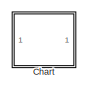
[diagram: root canvas - part 1/2, top center region]
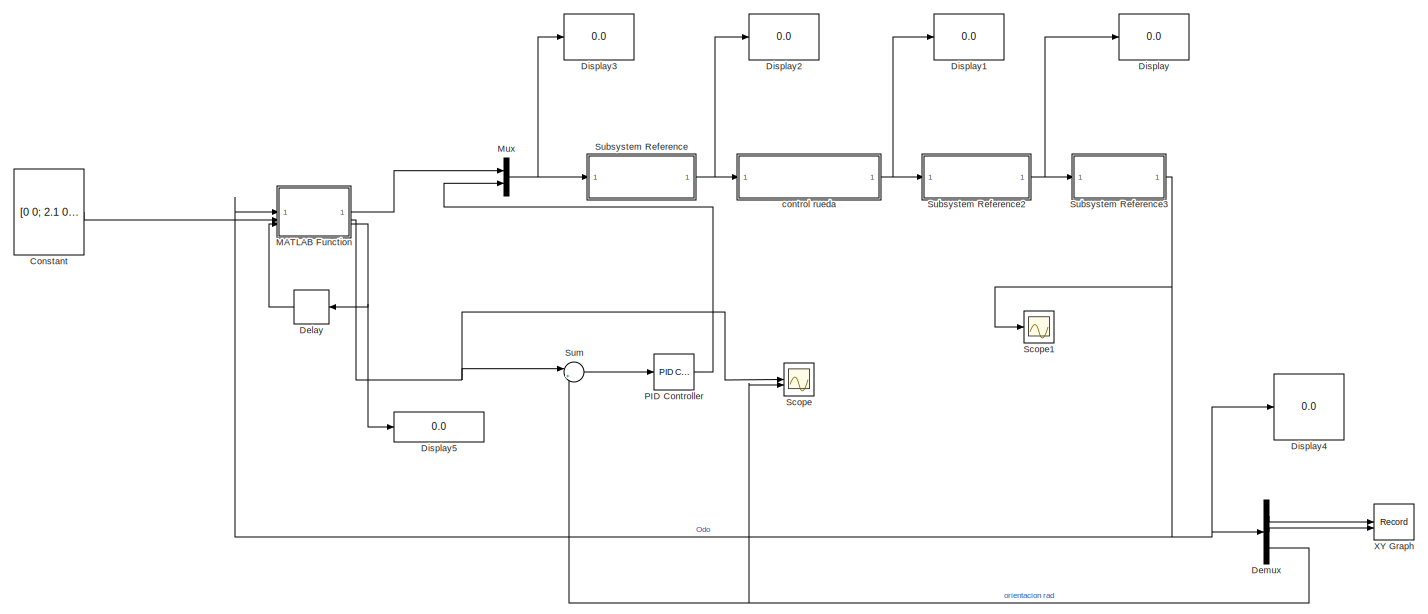
[diagram: root canvas - part 2/2, full width, middle band]
MODEL slx_1a6dbf2c0a22
KIND model
CONFIG AbsTol = auto
CONFIG EnableMultiTasking = on
CONFIG FixedStep = auto
CONFIG MaxStep = auto
CONFIG MinStep = auto
CONFIG RelTol = 1e-3
CONFIG SampleTimeConstraint = Unconstrained
CONFIG SolverName = FixedStepAuto
CONFIG StartTime = 0.0
CONFIG StopTime = 150
WORKSPACE source: mxarray member
WORKSPACE d = 0.19
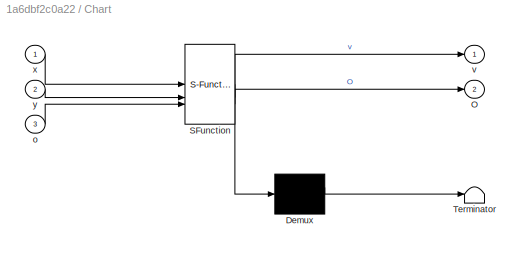
BLOCK [SubSystem] Chart
  Commented = on
  ErrorFcn = Stateflow.Translate.translate
  PermitHierarchicalResolution = ExplicitOnly
  SFBlockType = Chart
  TreatAsAtomicUnit = on
BLOCK [Demux] Chart/ Demux 
  Outputs = 1
BLOCK [S-Function] Chart/ SFunction 
  EnableBusSupport = on
  FunctionName = sf_sfun
  PortCounts = [3 3]
  SFcnIsStateOwnerBlock = off
  SFunctionDeploymentMode = off
  Tag = Stateflow S-Function 3
BLOCK [Terminator] Chart/ Terminator 
BLOCK [Outport] Chart/O
  Port = 2
BLOCK [Inport] Chart/o
  Port = 3
BLOCK [Outport] Chart/v
BLOCK [Inport] Chart/x
BLOCK [Inport] Chart/y
  Port = 2
BLOCK [Constant] Constant
  Value = [0 0; 2.1 0; 2.1 12; 3 12; 3 14; 3 14]
BLOCK [Delay] Delay
  DelayLength = 1
  InputPortMap = u0
BLOCK [Demux] Demux
  Outputs = 3
BLOCK [Display] Display
  Decimation = 1
BLOCK [Display] Display1
  Decimation = 1
BLOCK [Display] Display2
  Decimation = 1
BLOCK [Display] Display3
  Decimation = 1
BLOCK [Display] Display4
  Decimation = 1
BLOCK [Display] Display5
  Decimation = 1
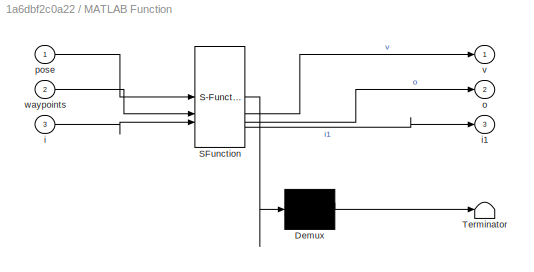
BLOCK [SubSystem] MATLAB Function
  ErrorFcn = Stateflow.Translate.translate
  PermitHierarchicalResolution = ExplicitOnly
  SFBlockType = MATLAB Function
  TreatAsAtomicUnit = on
BLOCK [Demux] MATLAB Function/ Demux 
  Outputs = 1
BLOCK [S-Function] MATLAB Function/ SFunction 
  EnableBusSupport = on
  FunctionName = sf_sfun
  PortCounts = [3 4]
  SFcnIsStateOwnerBlock = off
  SFunctionDeploymentMode = off
  Tag = Stateflow S-Function 2
BLOCK [Terminator] MATLAB Function/ Terminator 
BLOCK [Inport] MATLAB Function/i
  Port = 3
BLOCK [Outport] MATLAB Function/i1
  Port = 3
BLOCK [Outport] MATLAB Function/o
  Port = 2
BLOCK [Inport] MATLAB Function/pose
BLOCK [Outport] MATLAB Function/v
BLOCK [Inport] MATLAB Function/waypoints
  Port = 2
BLOCK [Mux] Mux
  DisplayOption = bar
  Inputs = 2
BLOCK [Reference] PID Controller  REF=slpidlib/PID Controller
  LibrarySourceBlock = simulink/Continuous/PID Controller
  SourceBlock = slpidlib/PID Controller
  SourceType = PID 1dof
BLOCK [Scope] Scope
  Floating = off
  NumInputPorts = 2
  ScopeSpecificationString = Simulink.scopes.TimeScopeBlockCfg('CurrentConfiguration', extmgr.ConfigurationSet(extmgr.Configuration('Core','General UI',true),extmgr.Configuration('Core','Source UI',true),extmgr.Configuration('Sources','WiredSimulink',true),extmgr.Configuration('Visuals','Time Domain',true,'SerializedDisplays',{struct('MinYLimReal','-0.19446','MaxYLimReal','1.74912','YLabelReal','','MinYLimMag','0.00000','MaxY...<+1997ch>
BLOCK [Scope] Scope1
  Floating = off
  NumInputPorts = 1
  ScopeSpecificationString = Simulink.scopes.TimeScopeBlockCfg('CurrentConfiguration', extmgr.ConfigurationSet(extmgr.Configuration('Core','General UI',true),extmgr.Configuration('Core','Source UI',true),extmgr.Configuration('Sources','WiredSimulink',true,'DataLoggingVariableName','ScopeData1'),extmgr.Configuration('Visuals','Time Domain',true,'SerializedDisplays',{struct('MinYLimReal','-1.72086','MaxYLimReal','15.48044','YLa...<+2725ch>
BLOCK [SubSystem] Subsystem Reference
  ReferencedSubsystem = MCI
BLOCK [SubSystem] Subsystem Reference2
  ReferencedSubsystem = MCD
BLOCK [SubSystem] Subsystem Reference3
  ReferencedSubsystem = Odometria
BLOCK [Sum] Sum
  Inputs = |+-
BLOCK [Record] XY Graph
  CompatibilityTag = XY
  FileSettingsInternal = {"entries":[{"content":{"excelSettings":{"content":{},"type":"Streamout.ExcelSettings"}},"type":"Streamout.FileSettingStorage","uuid":""}],"packageUris":["http:\/\/schema.mathworks.com\/mf0\/streamout_blocks\/R2020a"],"version":"1.0"}
  Layout = [1 1]
  SignalsInternal = {"entries":[{"content":{"signals":[{"content":{"blockPath":[],"dimensions":[1],"domain":"","lineColor":"#a2142f","plots":[ 1 ],"port":1,"signalID":1,"signalName":"Demux:1"},"type":"RecordBlkView.Signal","uuid":""},{"content":{"blockPath":[],"dimensions":[1],"domain":"","lineColor":"#139fff","plots":[ 1 ],"port":2,"signalID":2,"signalName":"Demux:2"},"type":"RecordBlkView.Signal","uuid":""}]},"type...<+138ch>
  VisualizationBindings = {"xyplotplugin":{"info":[{"series":[{"bindingParametersList":[{"parameter":"X-Axis","signalID":1,"signalName":"Demux:1"},{"parameter":"Y-Axis","signalID":2,"signalName":"Demux:2"}],"seriesID":0}],"subplotID":1}]}}
BLOCK [SubSystem] control rueda
  ReferencedSubsystem = PieroControladoV
LINE Constant:1 -> MATLAB Function:2
LINE Delay:1 -> MATLAB Function:3
LINE Demux:1 -> XY Graph:1
LINE Demux:2 -> XY Graph:2
NET Demux:3 -> Scope:2, Sum:2
LINE MATLAB Function:1 -> Mux:1
NET MATLAB Function:2 -> Scope:1, Sum:1
NET MATLAB Function:3 -> Delay:1, Display5:1
NET Mux:1 -> Display3:1, Subsystem Reference:1
LINE PID Controller:1 -> Mux:2
NET Subsystem Reference2:1 -> Display:1, Subsystem Reference3:1
NET Subsystem Reference3:1 -> Demux:1, Display4:1, MATLAB Function:1, Scope1:1
NET Subsystem Reference:1 -> Display2:1, control rueda:1
LINE Sum:1 -> PID Controller:1
NET control rueda:1 -> Display1:1, Subsystem Reference2:1
note: NET lines group one-source signal fan-out (src -> all destinations, sorted); 1:1 wires keep LINE
CHART MATLAB Function states=1 transitions=1
  STATE_LABEL 'eML_blk_kernel()'
  STATE_LABEL 'SCRIPT:\nfunction [v, o,i1] = fcn(pose, waypoints, i)\n\nLA=0.30;\n\nv = 0.205;\ni=i+1;\ni1=0;\nx=pose(1);\ny=pose(2);\nO=pose(3);\n\nif(length(waypoints) >= i)\n\n    distancia=sqrt((waypoints(i,1)-x)^2+(waypoints(i,2)-y)^2);\n    while(distancia < LA) && (length(waypoints)>i)\n        i=i+1;\n        distancia=sqrt((waypoints(i,1)-x)^2+(waypoints(i,2)-y)^2);\n        v=0.1;\n    end\n    o=atan2(waypoints(i,2)-y,wa...<+102ch>'
CHART Chart states=9 transitions=9
  STATE_LABEL 'Paro\nentry:\nO=pi/2;\nv=0;'
  STATE_LABEL 'Recto4\nentry:\nv=0.205;\nO=pi/2;'
  STATE_LABEL 'GiroDcha\nentry:\nv=0.1;\nO=0;'
  STATE_LABEL 'Recto1\nentry:\nv=0.205;\nO=0;'
  STATE_LABEL 'GiroIzq1\nentry:\nv=0.1;\nO=pi/2;'
  STATE_LABEL 'Recto12\nentry:\nv=0.205;\nO=pi/2;'
  STATE_LABEL 'Inicio\nentry:\nO=0;\nv=0;'
  STATE_LABEL 'Marcha\nentry:\nv=0.205;\nO=0;'
  STATE_LABEL 'GiroIzq\nentry:\nv=0.1;\nO=pi/2;'
CHART  states=0 transitions=0
CHART  states=0 transitions=0
